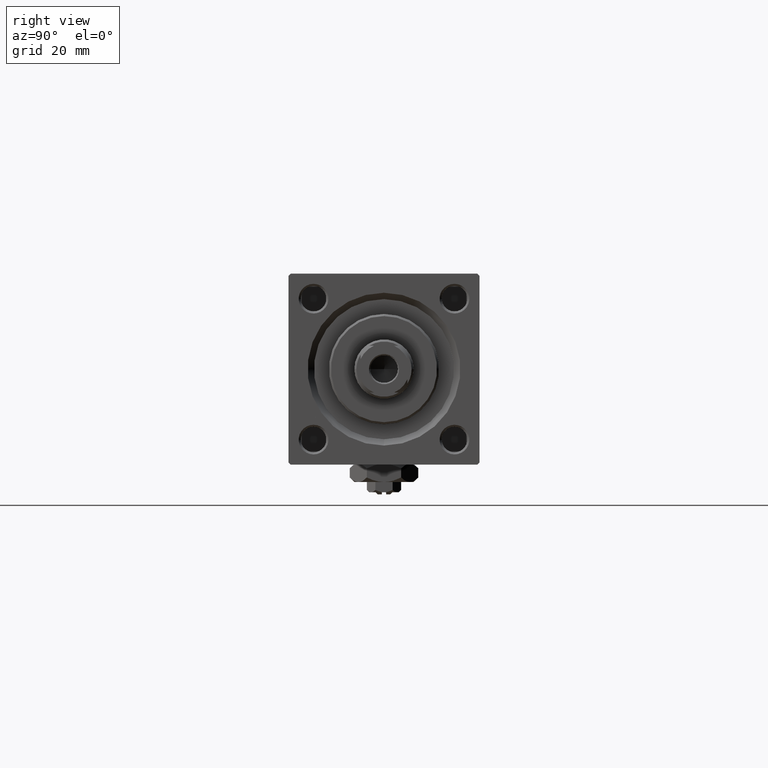
[diagram: clean part render]
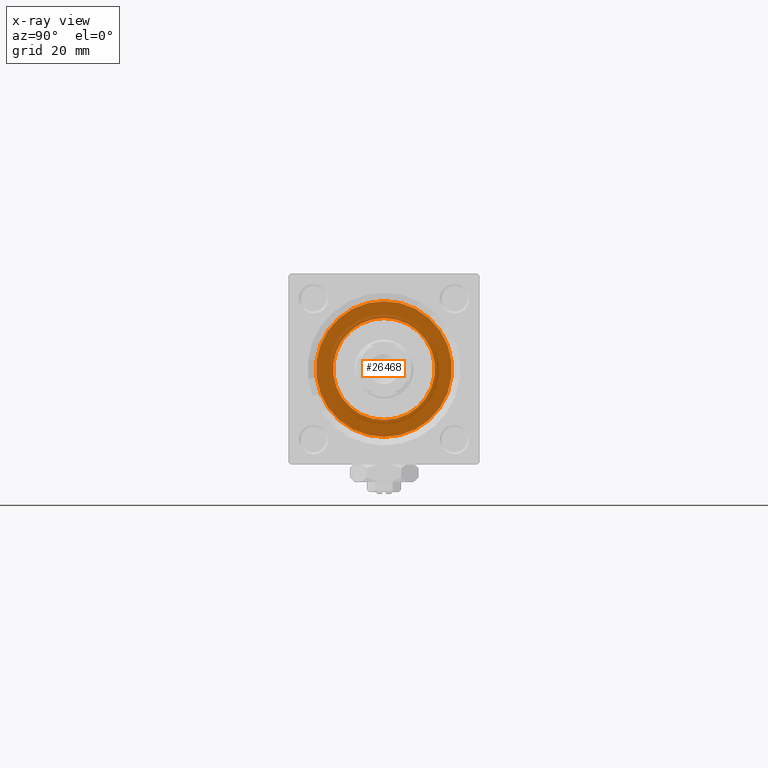
[diagram: x-ray — body ghosted, one internal face saturated and labeled with its STEP entity id]
A machine part, right view, then the same camera in x-ray: the body is ghosted and one INTERNAL B-rep face — a face not visible from any outside direction — is saturated and labeled: STEP entity #26468.
In plain terms, the highlighted planar face has unit normal (-1, 0, 0).
Its self-contained STEP definition (entity closure, byte-faithful):
#699 = DIRECTION ( 'NONE',  ( -1.000000000000000000, 0.000000000000000000, -0.000000000000000000 ) ) ;
#3503 = VERTEX_POINT ( 'NONE', #30997 ) ;
#5494 = DIRECTION ( 'NONE',  ( -1.000000000000000000, 0.000000000000000000, -0.000000000000000000 ) ) ;
#7959 = CIRCLE ( 'NONE', #49257, 16.00000000000000000 ) ;
#8350 = AXIS2_PLACEMENT_3D ( 'NONE', #49321, #5494, #37700 ) ;
#9448 = FACE_OUTER_BOUND ( 'NONE', #44417, .T. ) ;
#10406 = CARTESIAN_POINT ( 'NONE',  ( 75.00000000000001421, -6.426503353294456087E-16, -16.00000000000000000 ) ) ;
#11747 = CIRCLE ( 'NONE', #14247, 16.00000000000000000 ) ;
#13329 = DIRECTION ( 'NONE',  ( 0.000000000000000000, 0.000000000000000000, -1.000000000000000000 ) ) ;
#13791 = CARTESIAN_POINT ( 'NONE',  ( 75.00000000000001421, 1.469576158976824144E-15, 12.00000000000000178 ) ) ;
#14247 = AXIS2_PLACEMENT_3D ( 'NONE', #20444, #16725, #32826 ) ;
#15341 = DIRECTION ( 'NONE',  ( 0.000000000000000000, 0.000000000000000000, 1.000000000000000000 ) ) ;
#16725 = DIRECTION ( 'NONE',  ( 1.000000000000000000, 0.000000000000000000, 0.000000000000000000 ) ) ;
#17721 = VERTEX_POINT ( 'NONE', #10406 ) ;
#20444 = CARTESIAN_POINT ( 'NONE',  ( 75.00000000000001421, -2.602085213965210642E-15, 0.000000000000000000 ) ) ;
#21785 = DIRECTION ( 'NONE',  ( 0.000000000000000000, 0.000000000000000000, 1.000000000000000000 ) ) ;
#22710 = CIRCLE ( 'NONE', #49682, 12.00000000000000178 ) ;
#22838 = ORIENTED_EDGE ( 'NONE', *, *, #26200, .F. ) ;
#25554 = PLANE ( 'NONE',  #8350 ) ;
#26200 = EDGE_CURVE ( 'NONE', #17721, #31796, #11747, .T. ) ;
#26468 = ADVANCED_FACE ( 'NONE', ( #49829, #9448 ), #25554, .T. ) ;
#30288 = EDGE_CURVE ( 'NONE', #3503, #42605, #22710, .T. ) ;
#30997 = CARTESIAN_POINT ( 'NONE',  ( 75.00000000000001421, 0.000000000000000000, -12.00000000000000178 ) ) ;
#31796 = VERTEX_POINT ( 'NONE', #33799 ) ;
#32826 = DIRECTION ( 'NONE',  ( 0.000000000000000000, 0.000000000000000000, -1.000000000000000000 ) ) ;
#33724 = EDGE_LOOP ( 'NONE', ( #38573, #40745 ) ) ;
#33799 = CARTESIAN_POINT ( 'NONE',  ( 75.00000000000001421, -2.602085213965210642E-15, 16.00000000000000000 ) ) ;
#34126 = CIRCLE ( 'NONE', #51862, 12.00000000000000178 ) ;
#34465 = ORIENTED_EDGE ( 'NONE', *, *, #42932, .F. ) ;
#34603 = DIRECTION ( 'NONE',  ( -1.000000000000000000, 0.000000000000000000, -0.000000000000000000 ) ) ;
#36838 = CARTESIAN_POINT ( 'NONE',  ( 75.00000000000001421, 0.000000000000000000, 0.000000000000000000 ) ) ;
#37700 = DIRECTION ( 'NONE',  ( -0.000000000000000000, 0.000000000000000000, 1.000000000000000000 ) ) ;
#38573 = ORIENTED_EDGE ( 'NONE', *, *, #30288, .F. ) ;
#40745 = ORIENTED_EDGE ( 'NONE', *, *, #43417, .F. ) ;
#41309 = CARTESIAN_POINT ( 'NONE',  ( 75.00000000000001421, -2.602085213965210642E-15, 0.000000000000000000 ) ) ;
#42605 = VERTEX_POINT ( 'NONE', #13791 ) ;
#42932 = EDGE_CURVE ( 'NONE', #31796, #17721, #7959, .T. ) ;
#43311 = CARTESIAN_POINT ( 'NONE',  ( 75.00000000000001421, 0.000000000000000000, 0.000000000000000000 ) ) ;
#43417 = EDGE_CURVE ( 'NONE', #42605, #3503, #34126, .T. ) ;
#44417 = EDGE_LOOP ( 'NONE', ( #34465, #22838 ) ) ;
#46288 = DIRECTION ( 'NONE',  ( 1.000000000000000000, 0.000000000000000000, 0.000000000000000000 ) ) ;
#49257 = AXIS2_PLACEMENT_3D ( 'NONE', #41309, #46288, #13329 ) ;
#49321 = CARTESIAN_POINT ( 'NONE',  ( 75.00000000000001421, 0.000000000000000000, 0.000000000000000000 ) ) ;
#49682 = AXIS2_PLACEMENT_3D ( 'NONE', #36838, #699, #21785 ) ;
#49829 = FACE_BOUND ( 'NONE', #33724, .T. ) ;
#51862 = AXIS2_PLACEMENT_3D ( 'NONE', #43311, #34603, #15341 ) ;